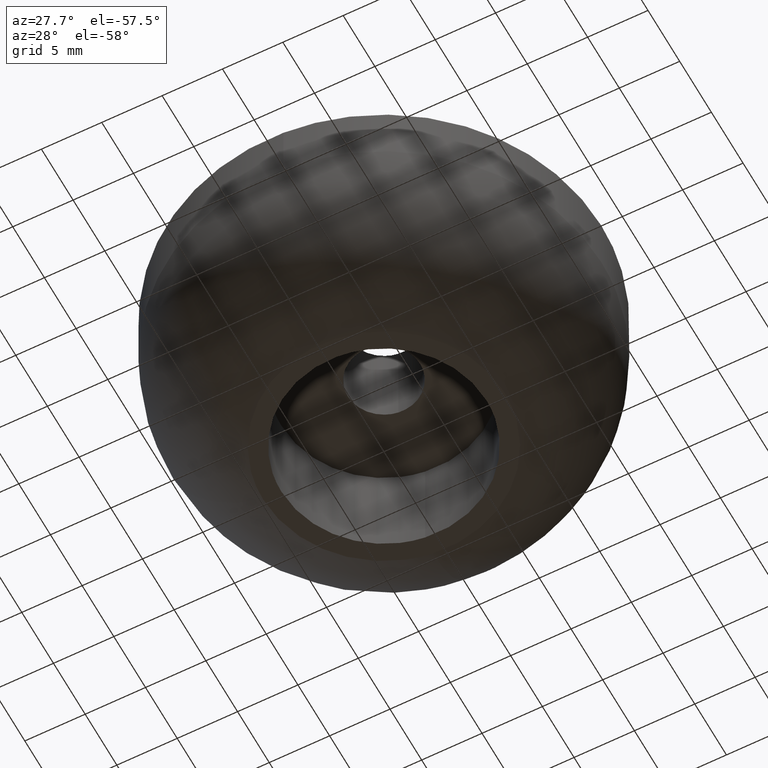
[diagram: clean part render]
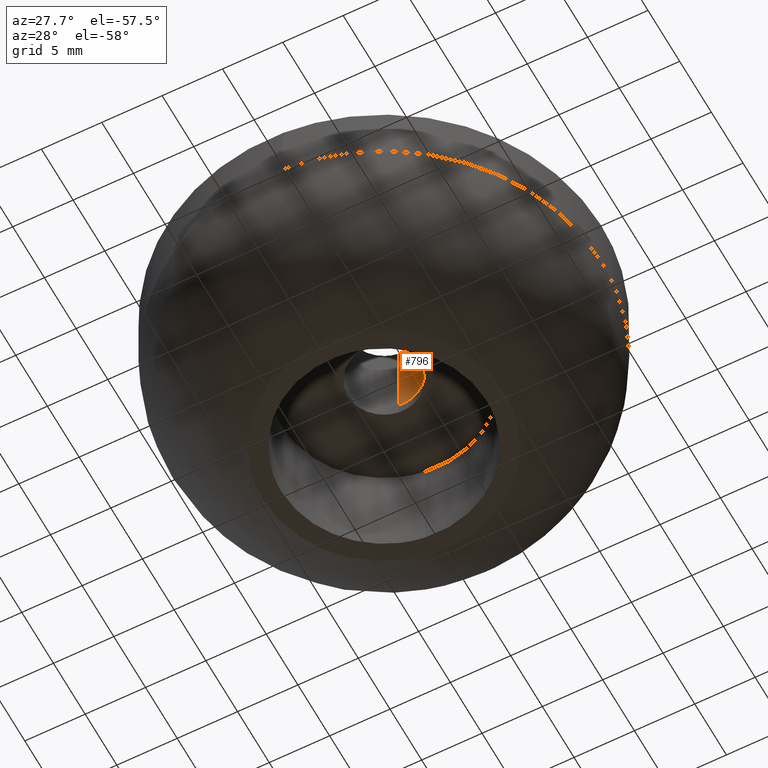
[diagram: same view with one face highlighted and labeled with its STEP entity id]
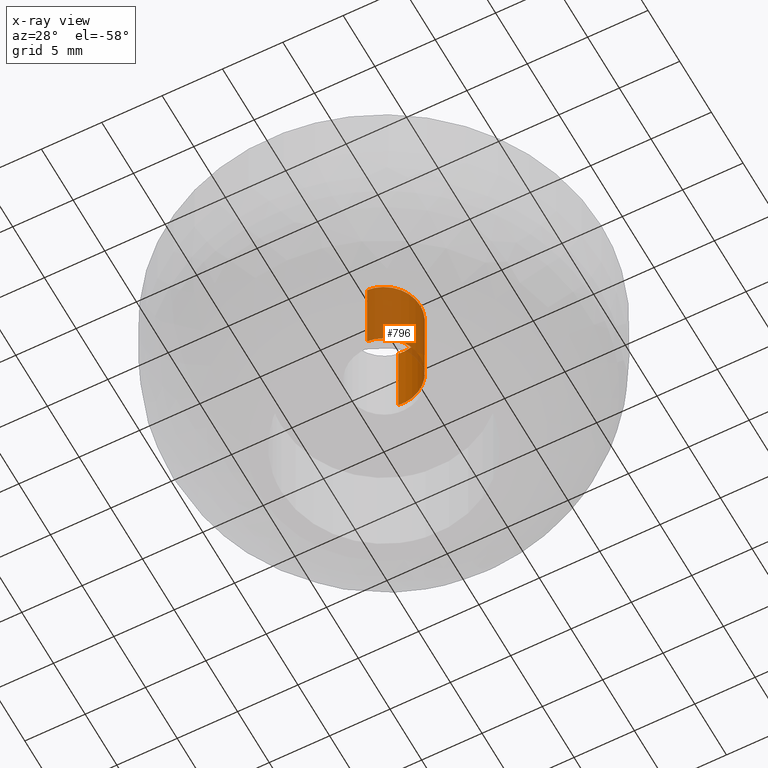
[diagram: x-ray of the same camera — body ghosted, the highlighted face saturated]
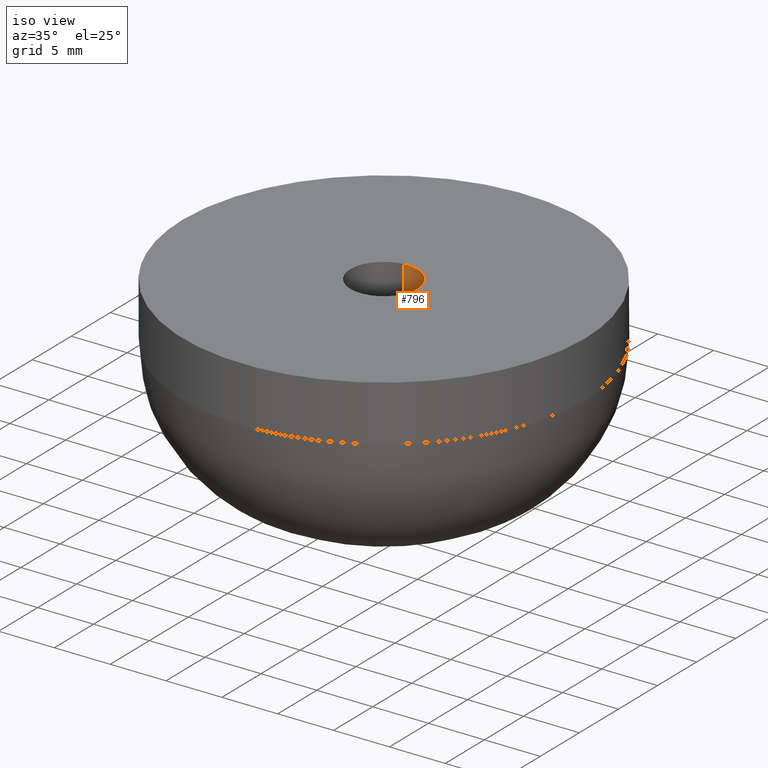
[diagram: same view with one face highlighted and labeled with its STEP entity id]
A machine part, auxiliary view. The second image highlights one B-rep face of the part: STEP entity #796.
The next image is the same camera in x-ray: the body ghosted, the highlighted face saturated — about 74% of this face is hidden behind the body in this view.
A second angle (iso view) of the same face is appended — the face is thin or edge-on in the first view.
In plain terms, the highlighted face is a freeform B-spline surface patch.
Its self-contained STEP definition (entity closure, byte-faithful):
#694=CARTESIAN_POINT('',(-0.354102703970275,2.979028579091000,17.175000000000008));
#695=CARTESIAN_POINT('',(-0.268844185913933,2.989162846345817,17.175000000000001));
#696=CARTESIAN_POINT('',(-0.183145618604571,2.994404395265600,17.175000000000001));
#697=CARTESIAN_POINT('',(2.811258776661029,3.177550013870171,17.175000000000008));
#698=CARTESIAN_POINT('',(2.994404395265600,0.183145618604571,17.175000000000001));
#699=CARTESIAN_POINT('',(3.177550013870171,-2.811258776661029,17.175000000000008));
#700=CARTESIAN_POINT('',(0.183145618604571,-2.994404395265600,17.175000000000001));
#701=CARTESIAN_POINT('',(-0.354102703970275,2.979028579091000,9.820624999999998));
#702=CARTESIAN_POINT('',(-0.268844185913933,2.989162846345817,9.820624999999998));
#703=CARTESIAN_POINT('',(-0.183145618604571,2.994404395265600,9.820624999999998));
#704=CARTESIAN_POINT('',(2.811258776661029,3.177550013870171,9.820625000000000));
#705=CARTESIAN_POINT('',(2.994404395265600,0.183145618604571,9.820624999999998));
#706=CARTESIAN_POINT('',(3.177550013870171,-2.811258776661029,9.820625000000000));
#707=CARTESIAN_POINT('',(0.183145618604571,-2.994404395265600,9.820624999999998));
#715=(BOUNDED_SURFACE()B_SPLINE_SURFACE(2,1,((#694,#701),(#695,#702),(#696,#703),(#697,#704),(#698,#705),(#699,#706),(#700,#707)),.UNSPECIFIED.,.F.,.F.,.U.)B_SPLINE_SURFACE_WITH_KNOTS((3,2,2,3),(2,2),(0.0,0.198822509939086,5.169385258416225,10.139948006893370),(0.0,7.354375000000006),.UNSPECIFIED.)GEOMETRIC_REPRESENTATION_ITEM()RATIONAL_B_SPLINE_SURFACE(((0.977505800795127,0.977505800795127),(0.988284271247462,0.988284271247462),(1.0,1.0),(0.707106781186548,0.707106781186548),(1.0,1.0),(0.707106781186548,0.707106781186548),(1.0,1.0)))REPRESENTATION_ITEM('')SURFACE());
#716=CARTESIAN_POINT('',(-0.354102703998569,2.979028579087636,17.0));
#717=VERTEX_POINT('',#716);
#718=CARTESIAN_POINT('',(3.0,0.0,17.0));
#719=VERTEX_POINT('',#718);
#720=CARTESIAN_POINT('',(-0.354102703998569,2.979028579087636,17.0));
#721=CARTESIAN_POINT('',(-0.177672358984323,3.0,17.000000000000004));
#722=CARTESIAN_POINT('',(0.0,3.0,17.0));
#723=CARTESIAN_POINT('',(3.0,3.0,17.000000000000004));
#724=CARTESIAN_POINT('',(3.0,0.0,17.0));
#732=(BOUNDED_CURVE()B_SPLINE_CURVE(2,(#720,#721,#722,#723,#724),.UNSPECIFIED.,.F.,.U.)B_SPLINE_CURVE_WITH_KNOTS((3,2,3),(0.229562473512434,0.250000000000000,0.500000000000000),.UNSPECIFIED.)CURVE()GEOMETRIC_REPRESENTATION_ITEM()RATIONAL_B_SPLINE_CURVE((0.956026754181593,0.976055948329886,1.0,0.707106781186548,1.0))REPRESENTATION_ITEM(''));
#733=EDGE_CURVE('',#717,#719,#732,.T.);
#734=ORIENTED_EDGE('',*,*,#733,.F.);
#735=CARTESIAN_POINT('',(-0.354102703998569,2.979028579087636,10.0));
#736=VERTEX_POINT('',#735);
#737=CARTESIAN_POINT('',(-0.354102703998569,2.979028579087636,17.0));
#738=CARTESIAN_POINT('',(-0.354102703998569,2.979028579087636,10.0));
#739=QUASI_UNIFORM_CURVE('',1,(#737,#738),.UNSPECIFIED.,.F.,.U.);
#740=EDGE_CURVE('',#717,#736,#739,.T.);
#741=ORIENTED_EDGE('',*,*,#740,.T.);
#742=CARTESIAN_POINT('',(3.0,0.0,10.0));
#743=VERTEX_POINT('',#742);
#744=CARTESIAN_POINT('',(-0.354102703998569,2.979028579087636,10.0));
#745=CARTESIAN_POINT('',(-0.177672358984323,3.0,10.0));
#746=CARTESIAN_POINT('',(0.0,3.0,10.0));
#747=CARTESIAN_POINT('',(3.0,3.0,10.000000000000002));
#748=CARTESIAN_POINT('',(3.0,0.0,10.0));
#756=(BOUNDED_CURVE()B_SPLINE_CURVE(2,(#744,#745,#746,#747,#748),.UNSPECIFIED.,.F.,.U.)B_SPLINE_CURVE_WITH_KNOTS((3,2,3),(0.229562473512434,0.250000000000000,0.500000000000000),.UNSPECIFIED.)CURVE()GEOMETRIC_REPRESENTATION_ITEM()RATIONAL_B_SPLINE_CURVE((0.956026754181593,0.976055948329886,1.0,0.707106781186548,1.0))REPRESENTATION_ITEM(''));
#757=EDGE_CURVE('',#736,#743,#756,.T.);
#758=ORIENTED_EDGE('',*,*,#757,.T.);
#759=CARTESIAN_POINT('',(0.183145618665812,-2.994404395261855,10.0));
#760=VERTEX_POINT('',#759);
#761=CARTESIAN_POINT('',(3.0,0.0,10.0));
#762=CARTESIAN_POINT('',(3.000000000000001,-2.822118200601435,10.0));
#763=CARTESIAN_POINT('',(0.183145618665812,-2.994404395261855,10.0));
#771=(BOUNDED_CURVE()B_SPLINE_CURVE(2,(#761,#762,#763),.UNSPECIFIED.,.F.,.U.)B_SPLINE_CURVE_WITH_KNOTS((3,3),(0.500000000000000,0.739332962234911),.UNSPECIFIED.)CURVE()GEOMETRIC_REPRESENTATION_ITEM()RATIONAL_B_SPLINE_CURVE((1.0,0.719603993291434,0.976072041658075))REPRESENTATION_ITEM(''));
#772=EDGE_CURVE('',#743,#760,#771,.T.);
#773=ORIENTED_EDGE('',*,*,#772,.T.);
#774=CARTESIAN_POINT('',(0.183145618665813,-2.994404395261855,17.0));
#775=VERTEX_POINT('',#774);
#776=CARTESIAN_POINT('',(0.183145618665813,-2.994404395261855,17.0));
#777=CARTESIAN_POINT('',(0.183145618665812,-2.994404395261855,10.0));
#778=QUASI_UNIFORM_CURVE('',1,(#776,#777),.UNSPECIFIED.,.F.,.U.);
#779=EDGE_CURVE('',#775,#760,#778,.T.);
#780=ORIENTED_EDGE('',*,*,#779,.F.);
#781=CARTESIAN_POINT('',(3.0,0.0,17.0));
#782=CARTESIAN_POINT('',(3.000000000000001,-2.822118200601435,17.000000000000007));
#783=CARTESIAN_POINT('',(0.183145618665813,-2.994404395261855,16.999999999999996));
#791=(BOUNDED_CURVE()B_SPLINE_CURVE(2,(#781,#782,#783),.UNSPECIFIED.,.F.,.U.)B_SPLINE_CURVE_WITH_KNOTS((3,3),(0.500000000000000,0.739332962234911),.UNSPECIFIED.)CURVE()GEOMETRIC_REPRESENTATION_ITEM()RATIONAL_B_SPLINE_CURVE((1.0,0.719603993291434,0.976072041658075))REPRESENTATION_ITEM(''));
#792=EDGE_CURVE('',#719,#775,#791,.T.);
#793=ORIENTED_EDGE('',*,*,#792,.F.);
#794=EDGE_LOOP('',(#734,#741,#758,#773,#780,#793));
#795=FACE_OUTER_BOUND('',#794,.T.);
#796=ADVANCED_FACE('',(#795),#715,.F.);